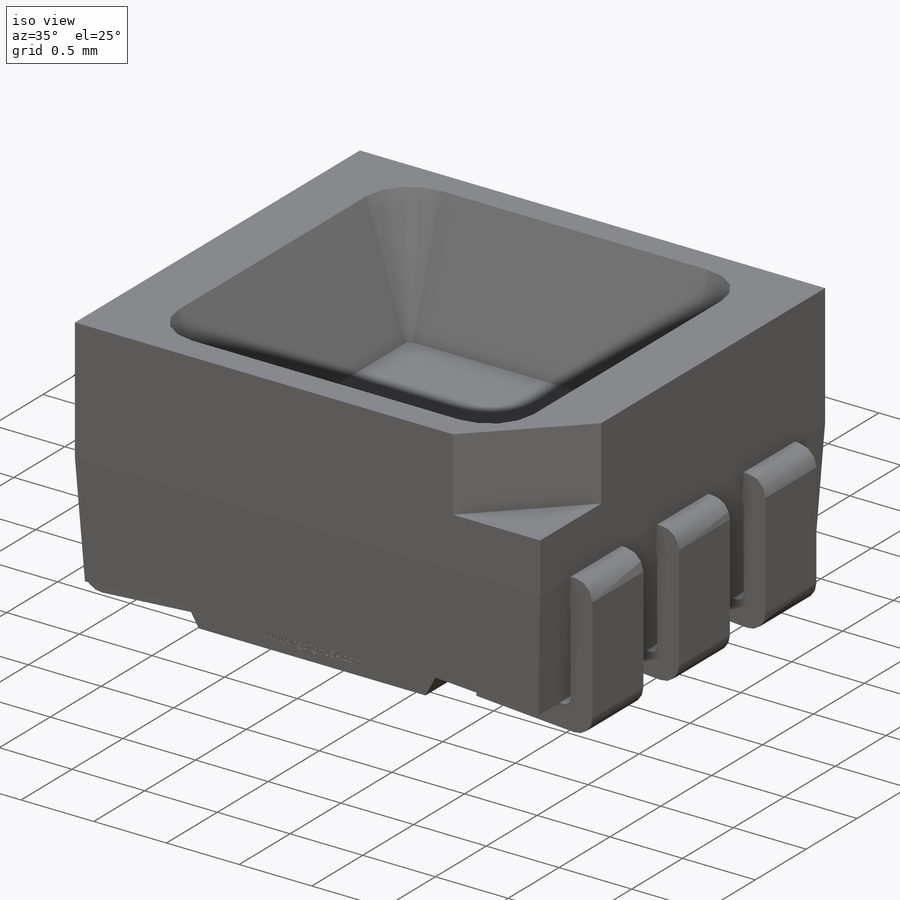
[diagram: iso view]
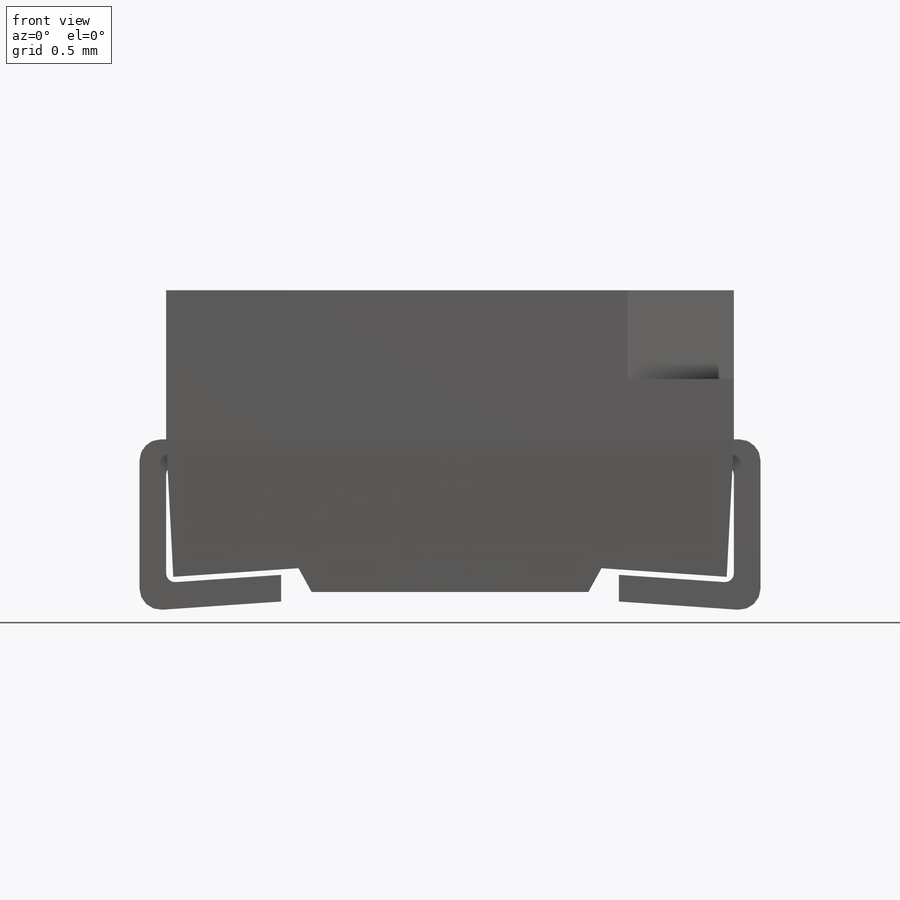
[diagram: front view]
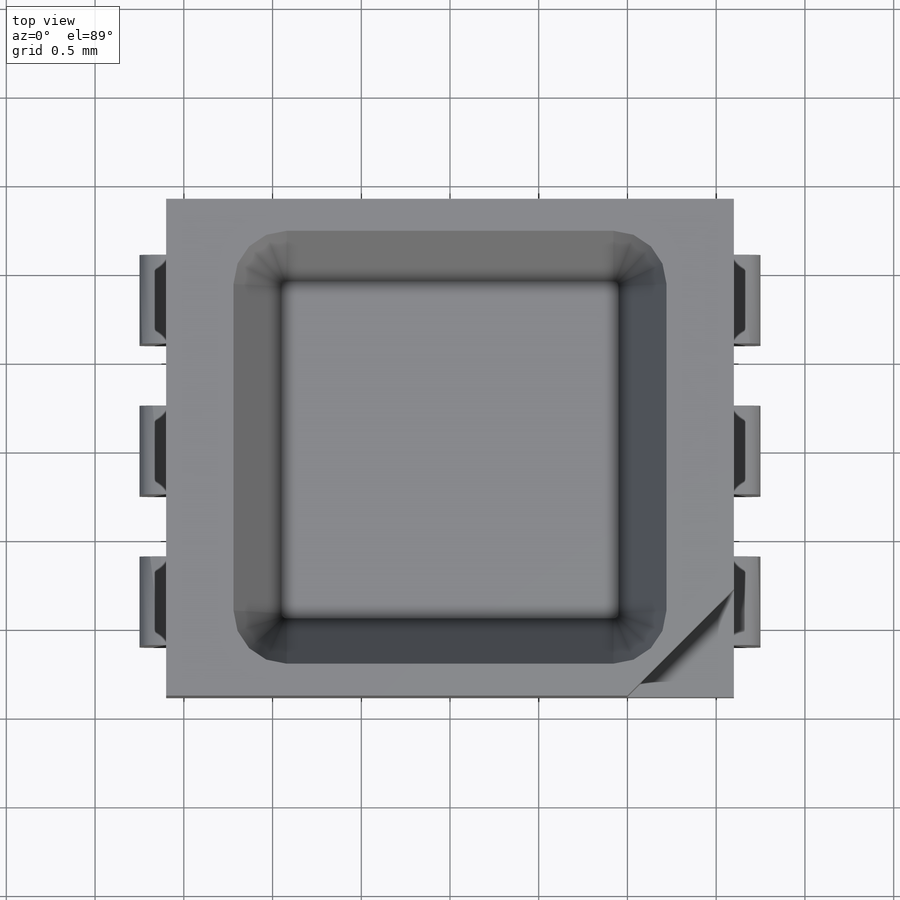
[diagram: top view]
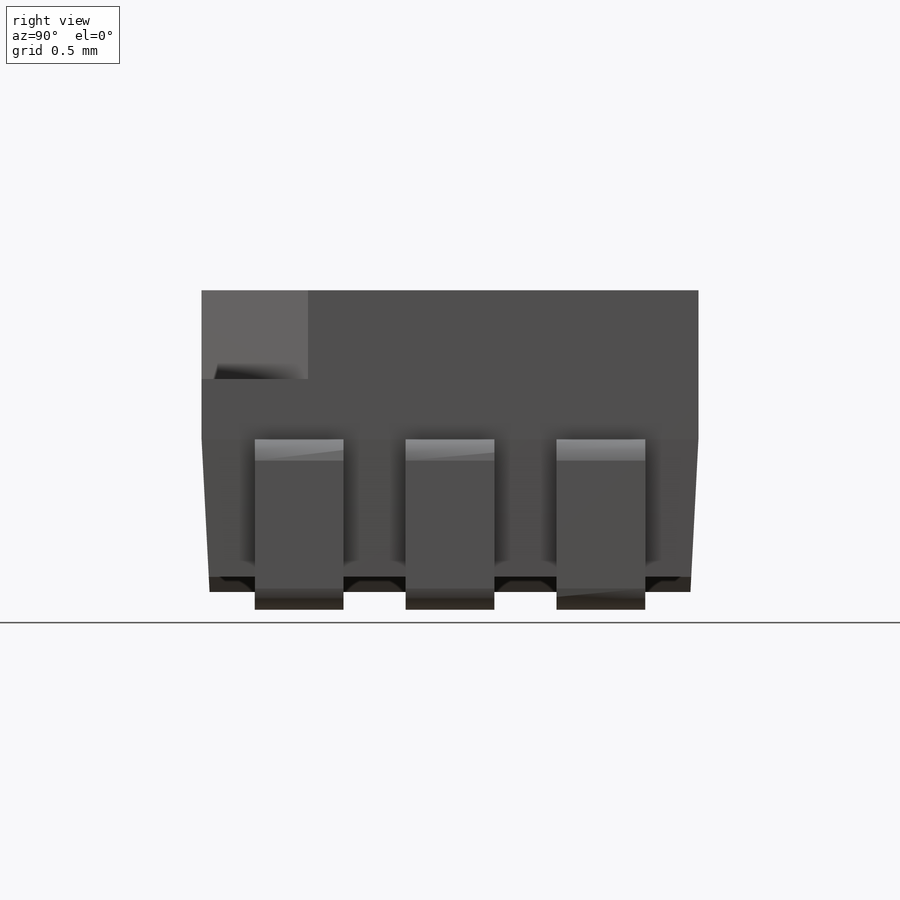
[diagram: right view]
SOLIDWORKS PART (.sldprt)
format: sldprt  version: not decoded by parser v0  size: 862,720 bytes
history: native  units: mm
features: sketch x8, extrude x4, cut_extrude x4, plane x2, material x1 (+11 scaffold rows collapsed)
feature tree (30):
  scaffold x11  (default folders/planes/origin — collapsed)
  material  "Material <not specified>"
  sketch  "Sketch1"  dims[c1.D9=0.3mm c1.D10=0.052mm c1.D11=0.02mm c1.D1=3.2mm c1.D2=~4.291667mm c2.D2=3.0deg c2.D3=1.35mm c2.D4=1.3mm c2.D5=0.36mm c2.D6=2.4mm c3.D5=0.36mm c4.D5=98.0deg c4.D6=~0.361375mm c5.D6=94.0deg c5.D7=1.56mm c5.D8=0.1mm c5.D3=1.0mm c5.D12=1.0mm c5.D13=0.3mm c5.D14=0.3mm c5.D15=1.4mm c5.D16=1.4mm c5.D17=0.35mm c5.D18=0.3mm c6.D3=0.84mm c6.D4=1.7mm c6.D5=~0.133806mm c6.D6=~0.133806mm c7.D6=~114.879969deg c7.D8=~0.133806mm c8.D8=~118.815934deg]
  extrude  "Extrude1"  Depth=2.8mm
  plane  "Plane1"  Offset=0.85mm
  sketch  "Sketch2"  dims[c1.D5=0.12mm c1.D6=0.05mm c1.D3=0.052mm c1.D2=1.4mm c2.D3=1.0mm c2.D4=0.8mm c2.D7=3.5mm c2.D2=1.4mm c3.D3=0.05mm c3.D2=1.95mm c4.D3=0.05mm c4.D2=1.8mm c5.D3=0.84mm c5.D1=0.15mm]
  plane  "Plane2"  Offset=0.85mm
  sketch  "Sketch3"  dims[c1.D2=0.1mm c1.D3=0.05mm c1.D4=0.02mm c1.D5=~1.940064mm c1.D1=0.0mm c2.D2=0.0mm]
  extrude  "Extrude2"  Depth=0.5mm
  extrude  "Extrude3"  Depth=0.5mm
  sketch  "Sketch4"  dims[c1.D1=4.0mm c1.D2=4.0mm c2.D1=3.2mm c2.D2=0.3mm c2.D3=~1.64441mm c3.D3=45.0deg c3.D4=3.0mm c3.D1=2.44mm c4.D4=2.44mm c4.D5=2.4mm c4.D6=1.9mm c4.D7=0.6mm c4.D8=0.6mm c5.D5=0.54mm c5.D6=0.54mm]
  cut_extrude  "Cut-Extrude4"  Depth=0.5mm
  sketch  "Sketch8"  dims[D1=0.0mm D2=0.0mm]
  extrude  "Extrude5"  Depth=0.5mm
  cut_extrude  "Cut-Extrude6"  [1 undecoded]
  sketch  "Sketch4<5>"  dims[D1=0.84mm D3=17.825deg]
  sketch  "Sketch9"  dims[c1.D1=0.86mm c2.D1=3.0deg]
  cut_extrude  "Cut-Extrude7"  [1 undecoded]
  sketch  "Sketch7"
  cut_extrude  "Cut-Extrude5"  Depth=0.01mm
decode coverage: 13 of 16 modeling features carry decoded parameters
note: ~ marks probable driven/reference dimensions
note: 2 parameter values undecoded
note: suppression state not decoded; provenance and decode notes live in map.json
